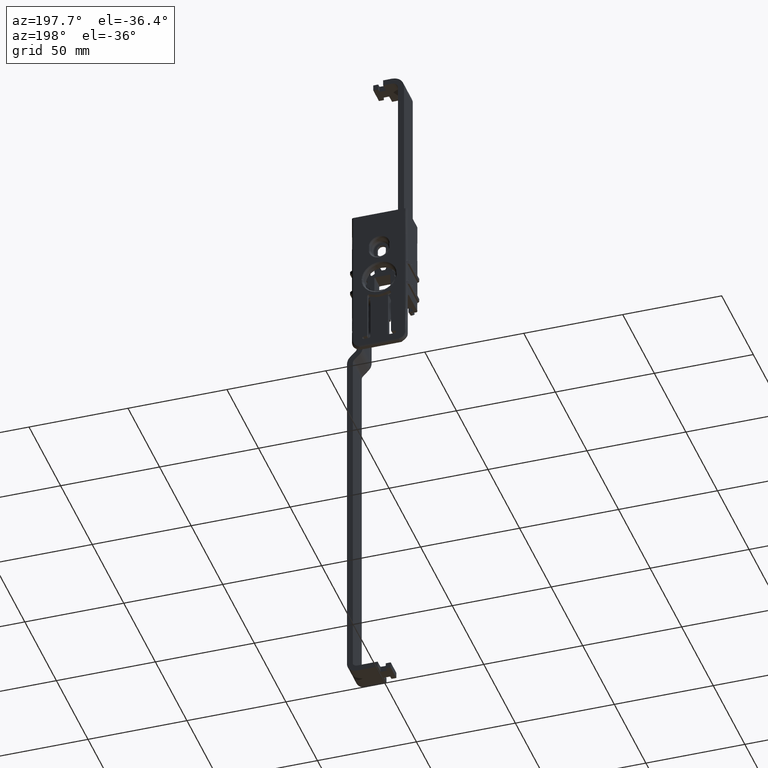
[diagram: clean part render]
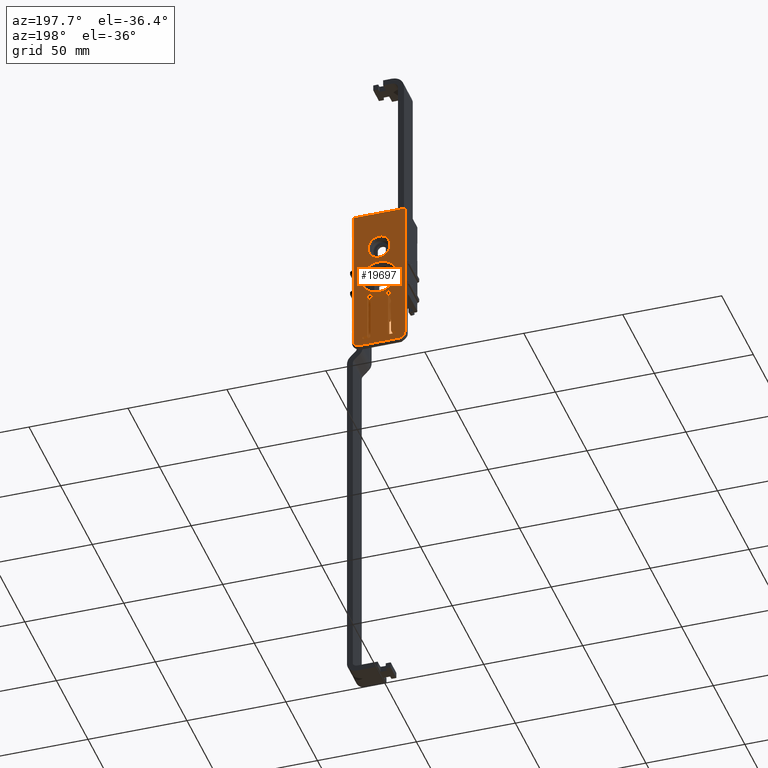
[diagram: same view with one face highlighted and labeled with its STEP entity id]
A machine part, auxiliary view. The second image highlights one B-rep face of the part: STEP entity #19697.
In plain terms, the highlighted face is a freeform B-spline surface patch.
Its self-contained STEP definition (entity closure, byte-faithful):
#7910=CARTESIAN_POINT('',(8.899297293252104,9.000000427477165,-0.111837754959659));
#7911=VERTEX_POINT('',#7910);
#7925=CARTESIAN_POINT('',(0.0,9.000000427477179,-8.900000000000000));
#7926=VERTEX_POINT('',#7925);
#7927=CARTESIAN_POINT('',(0.0,9.000000427477179,-8.900000000000000));
#7928=CARTESIAN_POINT('',(8.788856176175388,9.000000427477179,-8.900000000000000));
#7929=CARTESIAN_POINT('',(8.899297293252104,9.000000427477165,-0.111837754959659));
#7937=(BOUNDED_CURVE()B_SPLINE_CURVE(2,(#7927,#7928,#7929),.UNSPECIFIED.,.F.,.U.)B_SPLINE_CURVE_WITH_KNOTS((3,3),(0.0,0.247784295921734),.UNSPECIFIED.)CURVE()GEOMETRIC_REPRESENTATION_ITEM()RATIONAL_B_SPLINE_CURVE((1.0,0.709702639984233,0.994854295644026))REPRESENTATION_ITEM(''));
#7938=EDGE_CURVE('',#7926,#7911,#7937,.T.);
#7940=CARTESIAN_POINT('',(-8.878334497018338,9.000000427477165,0.620625939010087));
#7941=VERTEX_POINT('',#7940);
#7942=CARTESIAN_POINT('',(-8.878334497018338,9.000000427477165,0.620625939010087));
#7943=CARTESIAN_POINT('',(-8.900000000000000,9.000000427477177,0.310691131284875));
#7944=CARTESIAN_POINT('',(-8.900000000000000,9.000000427477179,0.0));
#7945=CARTESIAN_POINT('',(-8.900000000000000,9.000000427477179,-8.900000000000000));
#7946=CARTESIAN_POINT('',(0.0,9.000000427477179,-8.900000000000000));
#7954=(BOUNDED_CURVE()B_SPLINE_CURVE(2,(#7942,#7943,#7944,#7945,#7946),.UNSPECIFIED.,.F.,.U.)B_SPLINE_CURVE_WITH_KNOTS((3,2,3),(0.737833686535137,0.750000000000000,1.0),.UNSPECIFIED.)CURVE()GEOMETRIC_REPRESENTATION_ITEM()RATIONAL_B_SPLINE_CURVE((0.972879876387071,0.985746277152731,1.0,0.707106781186548,1.0))REPRESENTATION_ITEM(''));
#7955=EDGE_CURVE('',#7941,#7926,#7954,.T.);
#7998=CARTESIAN_POINT('',(0.0,9.000000427477179,8.900000000000000));
#7999=VERTEX_POINT('',#7998);
#8000=CARTESIAN_POINT('',(0.0,9.000000427477179,8.900000000000000));
#8001=CARTESIAN_POINT('',(-8.299577940672988,9.000000427477179,8.900000000000002));
#8002=CARTESIAN_POINT('',(-8.878334497018338,9.000000427477165,0.620625939010087));
#8010=(BOUNDED_CURVE()B_SPLINE_CURVE(2,(#8000,#8001,#8002),.UNSPECIFIED.,.F.,.U.)B_SPLINE_CURVE_WITH_KNOTS((3,3),(0.500000000000000,0.737833686535136),.UNSPECIFIED.)CURVE()GEOMETRIC_REPRESENTATION_ITEM()RATIONAL_B_SPLINE_CURVE((1.0,0.721360504033817,0.972879876387070))REPRESENTATION_ITEM(''));
#8011=EDGE_CURVE('',#7999,#7941,#8010,.T.);
#8013=CARTESIAN_POINT('',(8.899297293252104,9.000000427477165,-0.111837754959659));
#8014=CARTESIAN_POINT('',(8.900000000000000,9.000000427477179,-0.055921085127674));
#8015=CARTESIAN_POINT('',(8.900000000000000,9.000000427477179,0.0));
#8016=CARTESIAN_POINT('',(8.900000000000000,9.000000427477179,8.900000000000000));
#8017=CARTESIAN_POINT('',(0.0,9.000000427477179,8.900000000000000));
#8025=(BOUNDED_CURVE()B_SPLINE_CURVE(2,(#8013,#8014,#8015,#8016,#8017),.UNSPECIFIED.,.F.,.U.)B_SPLINE_CURVE_WITH_KNOTS((3,2,3),(0.247784295921734,0.250000000000000,0.500000000000000),.UNSPECIFIED.)CURVE()GEOMETRIC_REPRESENTATION_ITEM()RATIONAL_B_SPLINE_CURVE((0.994854295644026,0.997404141202314,1.0,0.707106781186548,1.0))REPRESENTATION_ITEM(''));
#8026=EDGE_CURVE('',#7911,#7999,#8025,.T.);
#8169=CARTESIAN_POINT('',(-5.289275512781100,9.000000427477179,18.960003688880700));
#8170=VERTEX_POINT('',#8169);
#8207=CARTESIAN_POINT('',(-5.289275512781100,9.000000427477179,17.039998021027401));
#8208=VERTEX_POINT('',#8207);
#8236=CARTESIAN_POINT('',(-5.289275512781100,9.000000427477179,18.960003688880700));
#8237=CARTESIAN_POINT('',(-5.289275512781100,9.000000427477179,17.039998021027401));
#8238=QUASI_UNIFORM_CURVE('',1,(#8236,#8237),.UNSPECIFIED.,.F.,.U.);
#8239=EDGE_CURVE('',#8170,#8208,#8238,.T.);
#8269=CARTESIAN_POINT('',(5.289274016024190,9.000000427477179,17.040195466436700));
#8270=VERTEX_POINT('',#8269);
#8298=CARTESIAN_POINT('',(-5.289275512781101,9.000000427477179,17.039998021027401));
#8299=CARTESIAN_POINT('',(-5.312502866420692,9.000000427477179,13.968387229562394));
#8300=CARTESIAN_POINT('',(-2.656194350534709,9.000000427477179,12.425870638846760));
#8301=CARTESIAN_POINT('',(0.000114165351272,9.000000427477179,10.883354048131126));
#8302=CARTESIAN_POINT('',(2.656365098180552,9.000000427477179,12.425969796152961));
#8303=CARTESIAN_POINT('',(5.312616031009831,9.000000427477179,13.968585544174797));
#8304=CARTESIAN_POINT('',(5.289274016024192,9.000000427477179,17.040195466436700));
#8312=(BOUNDED_CURVE()B_SPLINE_CURVE(2,(#8298,#8299,#8300,#8301,#8302,#8303,#8304),.UNSPECIFIED.,.F.,.U.)B_SPLINE_CURVE_WITH_KNOTS((3,2,2,3),(0.0,0.333333333333333,0.666666666666667,1.0),.UNSPECIFIED.)CURVE()GEOMETRIC_REPRESENTATION_ITEM()RATIONAL_B_SPLINE_CURVE((1.0,0.864759229394723,1.0,0.864759229394723,1.0,0.864759229394723,1.0))REPRESENTATION_ITEM(''));
#8313=EDGE_CURVE('',#8208,#8270,#8312,.T.);
#8359=CARTESIAN_POINT('',(5.289274016024190,9.000000427477179,18.959806243471348));
#8360=VERTEX_POINT('',#8359);
#8408=CARTESIAN_POINT('',(5.289274016024192,9.000000427477179,18.959806243471348));
#8409=CARTESIAN_POINT('',(5.312616031009833,9.000000427477179,22.031416165733241));
#8410=CARTESIAN_POINT('',(2.656365098180570,9.000000427477179,23.574031913755078));
#8411=CARTESIAN_POINT('',(0.000114165351306,9.000000427477179,25.116647661776927));
#8412=CARTESIAN_POINT('',(-2.656194350534678,9.000000427477179,23.574131071061309));
#8413=CARTESIAN_POINT('',(-5.312502866420661,9.000000427477179,22.031614480345702));
#8414=CARTESIAN_POINT('',(-5.289275512781101,9.000000427477179,18.960003688880700));
#8422=(BOUNDED_CURVE()B_SPLINE_CURVE(2,(#8408,#8409,#8410,#8411,#8412,#8413,#8414),.UNSPECIFIED.,.F.,.U.)B_SPLINE_CURVE_WITH_KNOTS((3,2,2,3),(0.0,0.333333333333333,0.666666666666667,1.0),.UNSPECIFIED.)CURVE()GEOMETRIC_REPRESENTATION_ITEM()RATIONAL_B_SPLINE_CURVE((1.0,0.864759229394724,1.0,0.864759229394724,1.0,0.864759229394724,1.0))REPRESENTATION_ITEM(''));
#8423=EDGE_CURVE('',#8360,#8170,#8422,.T.);
#8449=CARTESIAN_POINT('',(5.289274016024190,9.000000427477179,17.040195466436700));
#8450=CARTESIAN_POINT('',(5.289274016024190,9.000000427477179,18.959806243471348));
#8451=QUASI_UNIFORM_CURVE('',1,(#8449,#8450),.UNSPECIFIED.,.F.,.U.);
#8452=EDGE_CURVE('',#8270,#8360,#8451,.T.);
#16641=CARTESIAN_POINT('',(-4.500000213738530,9.000000427477170,-34.750001650536497));
#16642=VERTEX_POINT('',#16641);
#16648=CARTESIAN_POINT('',(-5.250000249361620,9.000000427477060,-35.500001686159500));
#16649=VERTEX_POINT('',#16648);
#16650=CARTESIAN_POINT('',(-5.250000249361620,9.000000427477060,-35.500001686159592));
#16651=CARTESIAN_POINT('',(-4.500000213738531,9.000000427477060,-35.500001686159592));
#16652=CARTESIAN_POINT('',(-4.500000213738531,9.000000427477060,-34.750001650536497));
#16660=(BOUNDED_CURVE()B_SPLINE_CURVE(2,(#16650,#16651,#16652),.UNSPECIFIED.,.F.,.U.)CURVE()GEOMETRIC_REPRESENTATION_ITEM()QUASI_UNIFORM_CURVE()RATIONAL_B_SPLINE_CURVE((1.0,0.707106781186548,1.0))REPRESENTATION_ITEM(''));
#16661=EDGE_CURVE('',#16649,#16642,#16660,.T.);
#16684=CARTESIAN_POINT('',(-7.750000368105250,9.000000427477060,-35.500001686159600));
#16685=VERTEX_POINT('',#16684);
#16686=CARTESIAN_POINT('',(-7.750000368105250,9.000000427477060,-35.500001686159600));
#16687=CARTESIAN_POINT('',(-5.250000249361620,9.000000427477060,-35.500001686159500));
#16688=QUASI_UNIFORM_CURVE('',1,(#16686,#16687),.UNSPECIFIED.,.F.,.U.);
#16689=EDGE_CURVE('',#16685,#16649,#16688,.T.);
#16735=CARTESIAN_POINT('',(-7.750000368105250,9.000000427477060,-34.000001614913401));
#16736=VERTEX_POINT('',#16735);
#16737=CARTESIAN_POINT('',(-7.750000368105250,9.000000427477060,-34.000001614913380));
#16738=CARTESIAN_POINT('',(-8.500000403728368,9.000000427477060,-34.000001614913387));
#16739=CARTESIAN_POINT('',(-8.500000403728368,9.000000427477060,-34.750001650536497));
#16740=CARTESIAN_POINT('',(-8.500000403728368,9.000000427477060,-35.500001686159614));
#16741=CARTESIAN_POINT('',(-7.750000368105250,9.000000427477060,-35.500001686159607));
#16749=(BOUNDED_CURVE()B_SPLINE_CURVE(2,(#16737,#16738,#16739,#16740,#16741),.UNSPECIFIED.,.F.,.U.)B_SPLINE_CURVE_WITH_KNOTS((3,2,3),(0.0,0.500000000000000,1.0),.UNSPECIFIED.)CURVE()GEOMETRIC_REPRESENTATION_ITEM()RATIONAL_B_SPLINE_CURVE((1.0,0.707106781186547,1.0,0.707106781186547,1.0))REPRESENTATION_ITEM(''));
#16750=EDGE_CURVE('',#16736,#16685,#16749,.T.);
#16773=CARTESIAN_POINT('',(-6.500000308733380,9.000000427477060,-34.000001614913351));
#16774=VERTEX_POINT('',#16773);
#16775=CARTESIAN_POINT('',(-6.500000308733380,9.000000427477060,-34.000001614913351));
#16776=CARTESIAN_POINT('',(-7.750000368105250,9.000000427477060,-34.000001614913401));
#16777=QUASI_UNIFORM_CURVE('',1,(#16775,#16776),.UNSPECIFIED.,.F.,.U.);
#16778=EDGE_CURVE('',#16774,#16736,#16777,.T.);
#16818=CARTESIAN_POINT('',(-6.000000284984710,9.000000427477060,-33.500001591164597));
#16819=VERTEX_POINT('',#16818);
#16820=CARTESIAN_POINT('',(-6.500000308733430,9.000000427477060,-34.000001614913323));
#16821=CARTESIAN_POINT('',(-6.000000284984709,9.000000427477060,-34.000001614913309));
#16822=CARTESIAN_POINT('',(-6.000000284984709,9.000000427477060,-33.500001591164597));
#16830=(BOUNDED_CURVE()B_SPLINE_CURVE(2,(#16820,#16821,#16822),.UNSPECIFIED.,.F.,.U.)CURVE()GEOMETRIC_REPRESENTATION_ITEM()QUASI_UNIFORM_CURVE()RATIONAL_B_SPLINE_CURVE((1.0,0.707106781186548,1.0))REPRESENTATION_ITEM(''));
#16831=EDGE_CURVE('',#16774,#16819,#16830,.T.);
#16854=CARTESIAN_POINT('',(-6.000000284984650,9.000000427477060,-10.467091783660241));
#16855=VERTEX_POINT('',#16854);
#16856=CARTESIAN_POINT('',(-6.000000284984650,9.000000427477060,-10.467091783660241));
#16857=CARTESIAN_POINT('',(-6.000000284984710,9.000000427477060,-33.500001591164597));
#16858=QUASI_UNIFORM_CURVE('',1,(#16856,#16857),.UNSPECIFIED.,.F.,.U.);
#16859=EDGE_CURVE('',#16855,#16819,#16858,.T.);
#16901=CARTESIAN_POINT('',(-4.568965734255530,9.000000427477060,-9.564756285072079));
#16902=VERTEX_POINT('',#16901);
#16903=CARTESIAN_POINT('',(-4.568965734255530,9.000000427477060,-9.564756285072079));
#16904=CARTESIAN_POINT('',(-5.066738743983948,9.000000427477060,-9.326976277182203));
#16905=CARTESIAN_POINT('',(-5.533369514484297,9.000000427477060,-9.621209221273187));
#16906=CARTESIAN_POINT('',(-6.000000284984645,9.000000427477060,-9.915442165364173));
#16907=CARTESIAN_POINT('',(-6.000000284984645,9.000000427477060,-10.467091783660241));
#16915=(BOUNDED_CURVE()B_SPLINE_CURVE(2,(#16903,#16904,#16905,#16906,#16907),.UNSPECIFIED.,.F.,.U.)B_SPLINE_CURVE_WITH_KNOTS((3,2,3),(0.0,0.500000000000000,1.0),.UNSPECIFIED.)CURVE()GEOMETRIC_REPRESENTATION_ITEM()RATIONAL_B_SPLINE_CURVE((1.0,0.875605291116785,1.0,0.875605291116785,1.0))REPRESENTATION_ITEM(''));
#16916=EDGE_CURVE('',#16902,#16855,#16915,.T.);
#16956=CARTESIAN_POINT('',(4.568965734254590,9.000000427477060,-9.564756285069009));
#16957=VERTEX_POINT('',#16956);
#16958=CARTESIAN_POINT('',(-4.568965734255530,9.000000427477060,-9.564756285072077));
#16959=CARTESIAN_POINT('',(2.619432E-013,9.000000427477060,-11.747294685280261));
#16960=CARTESIAN_POINT('',(4.568965734254590,9.000000427477060,-9.564756285069009));
#16968=(BOUNDED_CURVE()B_SPLINE_CURVE(2,(#16958,#16959,#16960),.UNSPECIFIED.,.F.,.U.)CURVE()GEOMETRIC_REPRESENTATION_ITEM()QUASI_UNIFORM_CURVE()RATIONAL_B_SPLINE_CURVE((1.0,0.902335455733064,1.0))REPRESENTATION_ITEM(''));
#16969=EDGE_CURVE('',#16902,#16957,#16968,.T.);
#17011=CARTESIAN_POINT('',(6.000000284984650,9.000000427477060,-10.467091783660241));
#17012=VERTEX_POINT('',#17011);
#17013=CARTESIAN_POINT('',(6.000000284984650,9.000000427477060,-10.467091783660241));
#17014=CARTESIAN_POINT('',(6.000000284984711,9.000000427477060,-9.915442165364309));
#17015=CARTESIAN_POINT('',(5.533369514484537,9.000000427477060,-9.621209221273295));
#17016=CARTESIAN_POINT('',(5.066738743984365,9.000000427477060,-9.326976277182283));
#17017=CARTESIAN_POINT('',(4.568965734254594,9.000000427477060,-9.564756285069018));
#17025=(BOUNDED_CURVE()B_SPLINE_CURVE(2,(#17013,#17014,#17015,#17016,#17017),.UNSPECIFIED.,.F.,.U.)B_SPLINE_CURVE_WITH_KNOTS((3,2,3),(0.0,0.500000000000000,1.0),.UNSPECIFIED.)CURVE()GEOMETRIC_REPRESENTATION_ITEM()RATIONAL_B_SPLINE_CURVE((1.0,0.875605291116836,1.0,0.875605291116836,1.0))REPRESENTATION_ITEM(''));
#17026=EDGE_CURVE('',#17012,#16957,#17025,.T.);
#17049=CARTESIAN_POINT('',(6.000000284984750,9.000000427477060,-33.500001591164647));
#17050=VERTEX_POINT('',#17049);
#17051=CARTESIAN_POINT('',(6.000000284984750,9.000000427477060,-33.500001591164647));
#17052=CARTESIAN_POINT('',(6.000000284984650,9.000000427477060,-10.467091783660241));
#17053=QUASI_UNIFORM_CURVE('',1,(#17051,#17052),.UNSPECIFIED.,.F.,.U.);
#17054=EDGE_CURVE('',#17050,#17012,#17053,.T.);
#17094=CARTESIAN_POINT('',(6.500000308733489,9.000000427477060,-34.000001614913401));
#17095=VERTEX_POINT('',#17094);
#17096=CARTESIAN_POINT('',(6.000000284984750,9.000000427477060,-33.500001591164647));
#17097=CARTESIAN_POINT('',(6.000000284984805,9.000000427477060,-34.000001614913330));
#17098=CARTESIAN_POINT('',(6.500000308733489,9.000000427477060,-34.000001614913337));
#17106=(BOUNDED_CURVE()B_SPLINE_CURVE(2,(#17096,#17097,#17098),.UNSPECIFIED.,.F.,.U.)CURVE()GEOMETRIC_REPRESENTATION_ITEM()QUASI_UNIFORM_CURVE()RATIONAL_B_SPLINE_CURVE((1.0,0.707106781186587,1.0))REPRESENTATION_ITEM(''));
#17107=EDGE_CURVE('',#17050,#17095,#17106,.T.);
#17130=CARTESIAN_POINT('',(7.750000368105250,9.000000427477060,-34.000001614913401));
#17131=VERTEX_POINT('',#17130);
#17132=CARTESIAN_POINT('',(7.750000368105250,9.000000427477060,-34.000001614913401));
#17133=CARTESIAN_POINT('',(6.500000308733489,9.000000427477060,-34.000001614913401));
#17134=QUASI_UNIFORM_CURVE('',1,(#17132,#17133),.UNSPECIFIED.,.F.,.U.);
#17135=EDGE_CURVE('',#17131,#17095,#17134,.T.);
#17181=CARTESIAN_POINT('',(7.750000368105250,9.000000427477060,-35.500001686159500));
#17182=VERTEX_POINT('',#17181);
#17183=CARTESIAN_POINT('',(7.750000368105250,9.000000427477060,-35.500001686159578));
#17184=CARTESIAN_POINT('',(8.500000403728331,9.000000427477060,-35.500001686159585));
#17185=CARTESIAN_POINT('',(8.500000403728331,9.000000427477060,-34.750001650536497));
#17186=CARTESIAN_POINT('',(8.500000403728331,9.000000427477060,-34.000001614913415));
#17187=CARTESIAN_POINT('',(7.750000368105250,9.000000427477060,-34.000001614913423));
#17195=(BOUNDED_CURVE()B_SPLINE_CURVE(2,(#17183,#17184,#17185,#17186,#17187),.UNSPECIFIED.,.F.,.U.)B_SPLINE_CURVE_WITH_KNOTS((3,2,3),(0.0,0.500000000000000,1.0),.UNSPECIFIED.)CURVE()GEOMETRIC_REPRESENTATION_ITEM()RATIONAL_B_SPLINE_CURVE((1.0,0.707106781186547,1.0,0.707106781186547,1.0))REPRESENTATION_ITEM(''));
#17196=EDGE_CURVE('',#17182,#17131,#17195,.T.);
#17219=CARTESIAN_POINT('',(5.250000249361561,9.000000427477060,-35.500001686159550));
#17220=VERTEX_POINT('',#17219);
#17221=CARTESIAN_POINT('',(5.250000249361561,9.000000427477060,-35.500001686159550));
#17222=CARTESIAN_POINT('',(7.750000368105250,9.000000427477060,-35.500001686159500));
#17223=QUASI_UNIFORM_CURVE('',1,(#17221,#17222),.UNSPECIFIED.,.F.,.U.);
#17224=EDGE_CURVE('',#17220,#17182,#17223,.T.);
#17264=CARTESIAN_POINT('',(4.500000213738590,9.000000427477060,-34.750001650536497));
#17265=VERTEX_POINT('',#17264);
#17266=CARTESIAN_POINT('',(4.500000213738491,9.000000427477060,-34.750001650536497));
#17267=CARTESIAN_POINT('',(4.500000213738491,9.000000427477060,-35.500001686159571));
#17268=CARTESIAN_POINT('',(5.250000249361561,9.000000427477060,-35.500001686159557));
#17276=(BOUNDED_CURVE()B_SPLINE_CURVE(2,(#17266,#17267,#17268),.UNSPECIFIED.,.F.,.U.)CURVE()GEOMETRIC_REPRESENTATION_ITEM()QUASI_UNIFORM_CURVE()RATIONAL_B_SPLINE_CURVE((1.0,0.707106781186547,1.0))REPRESENTATION_ITEM(''));
#17277=EDGE_CURVE('',#17265,#17220,#17276,.T.);
#17311=CARTESIAN_POINT('',(-13.000000664964400,9.000000427477179,38.000001804903100));
#17312=VERTEX_POINT('',#17311);
#17326=CARTESIAN_POINT('',(-13.000000664964400,9.000000427477179,-36.000001899898052));
#17327=VERTEX_POINT('',#17326);
#17328=CARTESIAN_POINT('',(-13.000000664964400,9.000000427477179,-36.000001899898052));
#17329=CARTESIAN_POINT('',(-13.000000664964400,9.000000427477179,38.000001804903100));
#17330=QUASI_UNIFORM_CURVE('',1,(#17328,#17329),.UNSPECIFIED.,.F.,.U.);
#17331=EDGE_CURVE('',#17327,#17312,#17330,.T.);
#17385=CARTESIAN_POINT('',(-10.000000664964400,9.000000427477179,-39.000001899898102));
#17386=VERTEX_POINT('',#17385);
#17418=CARTESIAN_POINT('',(-10.000000664964400,9.000000427477179,-39.000001899898102));
#17419=CARTESIAN_POINT('',(-11.242641352083698,9.000000427477179,-39.000001899898102));
#17420=CARTESIAN_POINT('',(-12.121321008524060,9.000000427477179,-38.121322243457733));
#17421=CARTESIAN_POINT('',(-13.000000664964404,9.000000427477179,-37.242642587017372));
#17422=CARTESIAN_POINT('',(-13.000000664964400,9.000000427477179,-36.000001899898102));
#17430=(BOUNDED_CURVE()B_SPLINE_CURVE(2,(#17418,#17419,#17420,#17421,#17422),.UNSPECIFIED.,.F.,.U.)B_SPLINE_CURVE_WITH_KNOTS((3,2,3),(0.0,0.500000000000000,1.0),.UNSPECIFIED.)CURVE()GEOMETRIC_REPRESENTATION_ITEM()RATIONAL_B_SPLINE_CURVE((1.0,0.923879532511285,1.0,0.923879532511285,1.0))REPRESENTATION_ITEM(''));
#17431=EDGE_CURVE('',#17386,#17327,#17430,.T.);
#17450=CARTESIAN_POINT('',(10.000000664964301,9.000000427477179,-39.000001899898102));
#17451=VERTEX_POINT('',#17450);
#17473=CARTESIAN_POINT('',(10.000000664964301,9.000000427477179,-39.000001899898102));
#17474=CARTESIAN_POINT('',(-10.000000664964400,9.000000427477179,-39.000001899898102));
#17475=QUASI_UNIFORM_CURVE('',1,(#17473,#17474),.UNSPECIFIED.,.F.,.U.);
#17476=EDGE_CURVE('',#17451,#17386,#17475,.T.);
#17498=CARTESIAN_POINT('',(13.000000664964301,9.000000427477179,-36.000001899898052));
#17499=VERTEX_POINT('',#17498);
#17531=CARTESIAN_POINT('',(13.000000664964301,9.000000427477179,-36.000001899898102));
#17532=CARTESIAN_POINT('',(13.000000664964304,9.000000427477179,-37.242642587017372));
#17533=CARTESIAN_POINT('',(12.121321008523960,9.000000427477179,-38.121322243457733));
#17534=CARTESIAN_POINT('',(11.242641352083604,9.000000427477179,-39.000001899898102));
#17535=CARTESIAN_POINT('',(10.000000664964301,9.000000427477179,-39.000001899898102));
#17543=(BOUNDED_CURVE()B_SPLINE_CURVE(2,(#17531,#17532,#17533,#17534,#17535),.UNSPECIFIED.,.F.,.U.)B_SPLINE_CURVE_WITH_KNOTS((3,2,3),(0.0,0.500000000000000,1.0),.UNSPECIFIED.)CURVE()GEOMETRIC_REPRESENTATION_ITEM()RATIONAL_B_SPLINE_CURVE((1.0,0.923879532511288,1.0,0.923879532511288,1.0))REPRESENTATION_ITEM(''));
#17544=EDGE_CURVE('',#17499,#17451,#17543,.T.);
#17574=CARTESIAN_POINT('',(13.000000664964301,9.000000427477179,38.000001804903100));
#17575=VERTEX_POINT('',#17574);
#17576=CARTESIAN_POINT('',(13.000000664964301,9.000000427477179,38.000001804903100));
#17577=CARTESIAN_POINT('',(13.000000664964301,9.000000427477179,-36.000001899898052));
#17578=QUASI_UNIFORM_CURVE('',1,(#17576,#17577),.UNSPECIFIED.,.F.,.U.);
#17579=EDGE_CURVE('',#17575,#17499,#17578,.T.);
#17827=CARTESIAN_POINT('',(-13.000000664964400,9.000000427477179,38.000001804903100));
#17828=CARTESIAN_POINT('',(13.000000664964301,9.000000427477179,38.000001804903100));
#17829=QUASI_UNIFORM_CURVE('',1,(#17827,#17828),.UNSPECIFIED.,.F.,.U.);
#17830=EDGE_CURVE('',#17312,#17575,#17829,.T.);
#18920=CARTESIAN_POINT('',(4.500000213738470,9.000000427477060,-11.948222192510119));
#18921=VERTEX_POINT('',#18920);
#18922=CARTESIAN_POINT('',(4.500000213738470,9.000000427477060,-11.948222192510119));
#18923=CARTESIAN_POINT('',(4.500000213738590,9.000000427477060,-34.750001650536497));
#18924=QUASI_UNIFORM_CURVE('',1,(#18922,#18923),.UNSPECIFIED.,.F.,.U.);
#18925=EDGE_CURVE('',#18921,#17265,#18924,.T.);
#18949=CARTESIAN_POINT('',(3.841270029216435,9.000000427477060,-11.474086389380240));
#18950=VERTEX_POINT('',#18949);
#18958=CARTESIAN_POINT('',(4.500000213738469,9.000000427477060,-11.948222192510119));
#18959=CARTESIAN_POINT('',(4.500000213738469,9.000000427477060,-11.692057994404941));
#18960=CARTESIAN_POINT('',(4.292091733510294,9.000000427477060,-11.542411209474290));
#18961=CARTESIAN_POINT('',(4.084183253282118,9.000000427477060,-11.392764424543644));
#18962=CARTESIAN_POINT('',(3.841270029216442,9.000000427477060,-11.474086389380259));
#18970=(BOUNDED_CURVE()B_SPLINE_CURVE(2,(#18958,#18959,#18960,#18961,#18962),.UNSPECIFIED.,.F.,.U.)B_SPLINE_CURVE_WITH_KNOTS((3,2,3),(0.0,0.500000000000000,1.0),.UNSPECIFIED.)CURVE()GEOMETRIC_REPRESENTATION_ITEM()RATIONAL_B_SPLINE_CURVE((1.0,0.889995241361966,1.0,0.889995241361966,1.0))REPRESENTATION_ITEM(''));
#18971=EDGE_CURVE('',#18921,#18950,#18970,.T.);
#18992=CARTESIAN_POINT('',(-3.841270029211250,9.000000427477060,-11.474086389382000));
#18993=VERTEX_POINT('',#18992);
#18994=CARTESIAN_POINT('',(-3.841270029211247,9.000000427477060,-11.474086389381990));
#18995=CARTESIAN_POINT('',(2.886580E-012,9.000000427477060,-12.760058530134081));
#18996=CARTESIAN_POINT('',(3.841270029216437,9.000000427477060,-11.474086389380250));
#19004=(BOUNDED_CURVE()B_SPLINE_CURVE(2,(#18994,#18995,#18996),.UNSPECIFIED.,.F.,.U.)CURVE()GEOMETRIC_REPRESENTATION_ITEM()QUASI_UNIFORM_CURVE()RATIONAL_B_SPLINE_CURVE((1.0,0.948271557387340,1.0))REPRESENTATION_ITEM(''));
#19005=EDGE_CURVE('',#18993,#18950,#19004,.T.);
#19029=CARTESIAN_POINT('',(-4.500000213738540,9.000000427477060,-11.948222192510100));
#19030=VERTEX_POINT('',#19029);
#19038=CARTESIAN_POINT('',(-3.841270029211251,9.000000427477060,-11.474086389382000));
#19039=CARTESIAN_POINT('',(-4.084183253277682,9.000000427477060,-11.392764424542143));
#19040=CARTESIAN_POINT('',(-4.292091733508103,9.000000427477060,-11.542411209472659));
#19041=CARTESIAN_POINT('',(-4.500000213738534,9.000000427477060,-11.692057994403187));
#19042=CARTESIAN_POINT('',(-4.500000213738534,9.000000427477060,-11.948222192510119));
#19050=(BOUNDED_CURVE()B_SPLINE_CURVE(2,(#19038,#19039,#19040,#19041,#19042),.UNSPECIFIED.,.F.,.U.)B_SPLINE_CURVE_WITH_KNOTS((3,2,3),(0.0,0.500000000000000,1.0),.UNSPECIFIED.)CURVE()GEOMETRIC_REPRESENTATION_ITEM()RATIONAL_B_SPLINE_CURVE((1.0,0.889995241360711,1.0,0.889995241360711,1.0))REPRESENTATION_ITEM(''));
#19051=EDGE_CURVE('',#18993,#19030,#19050,.T.);
#19063=CARTESIAN_POINT('',(-4.500000213738530,9.000000427477170,-34.750001650536497));
#19064=CARTESIAN_POINT('',(-4.500000213738540,9.000000427477060,-11.948222192510100));
#19065=QUASI_UNIFORM_CURVE('',1,(#19063,#19064),.UNSPECIFIED.,.F.,.U.);
#19066=EDGE_CURVE('',#16642,#19030,#19065,.T.);
#19650=CARTESIAN_POINT('',(-14.298701169140109,9.000000427477179,41.846150119976990));
#19651=CARTESIAN_POINT('',(-14.298701169140109,9.000000427477179,-42.846148149670952));
#19652=CARTESIAN_POINT('',(14.298701401598141,9.000000427477179,41.846150119976990));
#19653=CARTESIAN_POINT('',(14.298701401598141,9.000000427477179,-42.846148149670952));
#19654=B_SPLINE_SURFACE_WITH_KNOTS('',1,1,((#19650,#19652),(#19651,#19653)),.UNSPECIFIED.,.F.,.F.,.U.,(2,2),(2,2),(0.0,84.692298269647935),(0.0,28.597402570738250),.UNSPECIFIED.);
#19655=ORIENTED_EDGE('',*,*,#17431,.T.);
#19656=ORIENTED_EDGE('',*,*,#17331,.T.);
#19657=ORIENTED_EDGE('',*,*,#17830,.T.);
#19658=ORIENTED_EDGE('',*,*,#17579,.T.);
#19659=ORIENTED_EDGE('',*,*,#17544,.T.);
#19660=ORIENTED_EDGE('',*,*,#17476,.T.);
#19661=EDGE_LOOP('',(#19655,#19656,#19657,#19658,#19659,#19660));
#19662=FACE_OUTER_BOUND('',#19661,.T.);
#19663=ORIENTED_EDGE('',*,*,#16661,.T.);
#19664=ORIENTED_EDGE('',*,*,#19066,.T.);
#19665=ORIENTED_EDGE('',*,*,#19051,.F.);
#19666=ORIENTED_EDGE('',*,*,#19005,.T.);
#19667=ORIENTED_EDGE('',*,*,#18971,.F.);
#19668=ORIENTED_EDGE('',*,*,#18925,.T.);
#19669=ORIENTED_EDGE('',*,*,#17277,.T.);
#19670=ORIENTED_EDGE('',*,*,#17224,.T.);
#19671=ORIENTED_EDGE('',*,*,#17196,.T.);
#19672=ORIENTED_EDGE('',*,*,#17135,.T.);
#19673=ORIENTED_EDGE('',*,*,#17107,.F.);
#19674=ORIENTED_EDGE('',*,*,#17054,.T.);
#19675=ORIENTED_EDGE('',*,*,#17026,.T.);
#19676=ORIENTED_EDGE('',*,*,#16969,.F.);
#19677=ORIENTED_EDGE('',*,*,#16916,.T.);
#19678=ORIENTED_EDGE('',*,*,#16859,.T.);
#19679=ORIENTED_EDGE('',*,*,#16831,.F.);
#19680=ORIENTED_EDGE('',*,*,#16778,.T.);
#19681=ORIENTED_EDGE('',*,*,#16750,.T.);
#19682=ORIENTED_EDGE('',*,*,#16689,.T.);
#19683=EDGE_LOOP('',(#19663,#19664,#19665,#19666,#19667,#19668,#19669,#19670,#19671,#19672,#19673,#19674,#19675,#19676,#19677,#19678,#19679,#19680,#19681,#19682));
#19684=FACE_BOUND('',#19683,.T.);
#19685=ORIENTED_EDGE('',*,*,#8423,.T.);
#19686=ORIENTED_EDGE('',*,*,#8239,.T.);
#19687=ORIENTED_EDGE('',*,*,#8313,.T.);
#19688=ORIENTED_EDGE('',*,*,#8452,.T.);
#19689=EDGE_LOOP('',(#19685,#19686,#19687,#19688));
#19690=FACE_BOUND('',#19689,.T.);
#19691=ORIENTED_EDGE('',*,*,#7938,.T.);
#19692=ORIENTED_EDGE('',*,*,#8026,.T.);
#19693=ORIENTED_EDGE('',*,*,#8011,.T.);
#19694=ORIENTED_EDGE('',*,*,#7955,.T.);
#19695=EDGE_LOOP('',(#19691,#19692,#19693,#19694));
#19696=FACE_BOUND('',#19695,.T.);
#19697=ADVANCED_FACE('',(#19662,#19684,#19690,#19696),#19654,.F.);